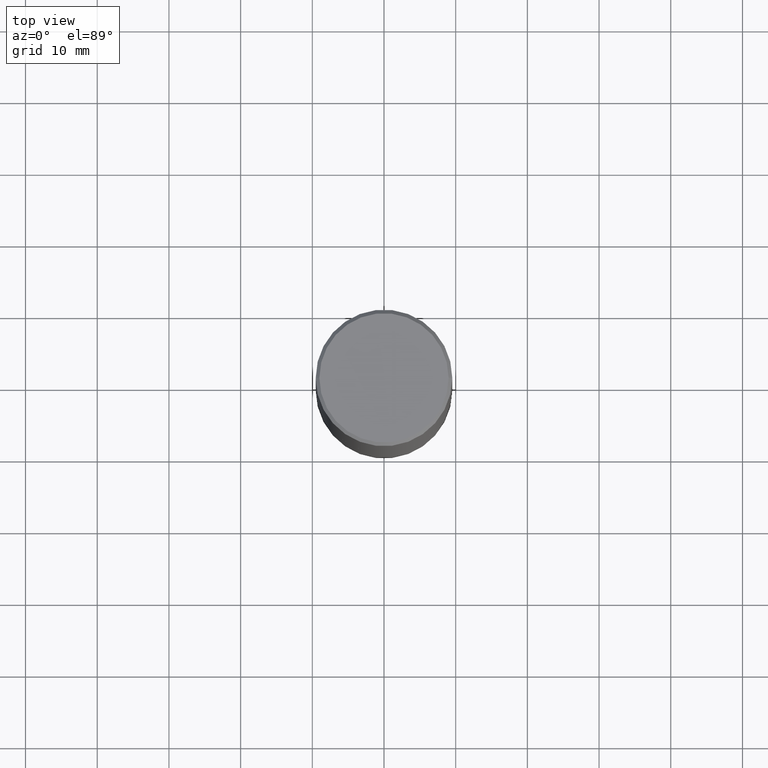
[diagram: clean part render]
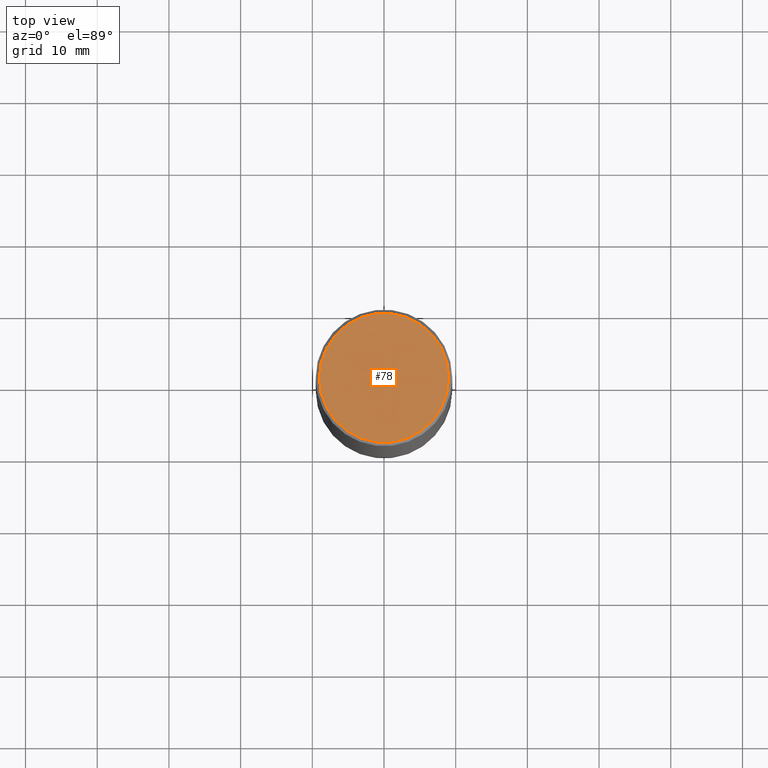
[diagram: same view with one face highlighted and labeled with its STEP entity id]
A machine part, top view. The second image highlights one B-rep face of the part: STEP entity #78.
In plain terms, the highlighted planar face has unit normal (0, -0, -1).
Its self-contained STEP definition (entity closure, byte-faithful):
#44 = CIRCLE ( 'NONE', #171, 0.3549999999999997602 ) ;
#51 = DIRECTION ( 'NONE',  ( 1.000000000000000000, -6.982962677686266711E-15, 4.876231632511991546E-29 ) ) ;
#78 = ADVANCED_FACE ( 'NONE', ( #80 ), #279, .F. ) ;
#80 = FACE_OUTER_BOUND ( 'NONE', #291, .T. ) ;
#91 = ORIENTED_EDGE ( 'NONE', *, *, #143, .T. ) ;
#108 = CIRCLE ( 'NONE', #199, 0.3549999999999997602 ) ;
#113 = DIRECTION ( 'NONE',  ( -2.445468806185136597E-29, 3.491481338843145583E-15, 1.000000000000000000 ) ) ;
#125 = VERTEX_POINT ( 'NONE', #324 ) ;
#143 = EDGE_CURVE ( 'NONE', #125, #144, #108, .T. ) ;
#144 = VERTEX_POINT ( 'NONE', #281 ) ;
#157 = CARTESIAN_POINT ( 'NONE',  ( 2.478951750578623026E-15, 0.3549999999999997602, -1.237341619044265638E-15 ) ) ;
#167 = AXIS2_PLACEMENT_3D ( 'NONE', #157, #214, #307 ) ;
#171 = AXIS2_PLACEMENT_3D ( 'NONE', #346, #300, #318 ) ;
#199 = AXIS2_PLACEMENT_3D ( 'NONE', #309, #113, #51 ) ;
#214 = DIRECTION ( 'NONE',  ( 2.438088387897960049E-29, -3.491481338843145188E-15, -1.000000000000000000 ) ) ;
#228 = ORIENTED_EDGE ( 'NONE', *, *, #308, .T. ) ;
#279 = PLANE ( 'NONE',  #167 ) ;
#281 = CARTESIAN_POINT ( 'NONE',  ( -0.3549999999999997602, 2.513866563967053491E-15, 4.268512490082953109E-18 ) ) ;
#291 = EDGE_LOOP ( 'NONE', ( #228, #91 ) ) ;
#300 = DIRECTION ( 'NONE',  ( -2.445468806185136597E-29, 3.491481338843145583E-15, 1.000000000000000000 ) ) ;
#307 = DIRECTION ( 'NONE',  ( -1.000000000000000000, 6.982962677686265922E-15, -4.876176775795935793E-29 ) ) ;
#308 = EDGE_CURVE ( 'NONE', #144, #125, #44, .T. ) ;
#309 = CARTESIAN_POINT ( 'NONE',  ( -1.043851414335219820E-46, 1.490343170380447200E-32, 4.268512490100411279E-18 ) ) ;
#318 = DIRECTION ( 'NONE',  ( 1.000000000000000000, -6.982962677686266711E-15, 4.876231632511991546E-29 ) ) ;
#324 = CARTESIAN_POINT ( 'NONE',  ( 0.3549999999999997602, -2.538996582575039076E-15, 4.268512490117958041E-18 ) ) ;
#346 = CARTESIAN_POINT ( 'NONE',  ( -1.043851414335219820E-46, 1.490343170380447200E-32, 4.268512490100411279E-18 ) ) ;